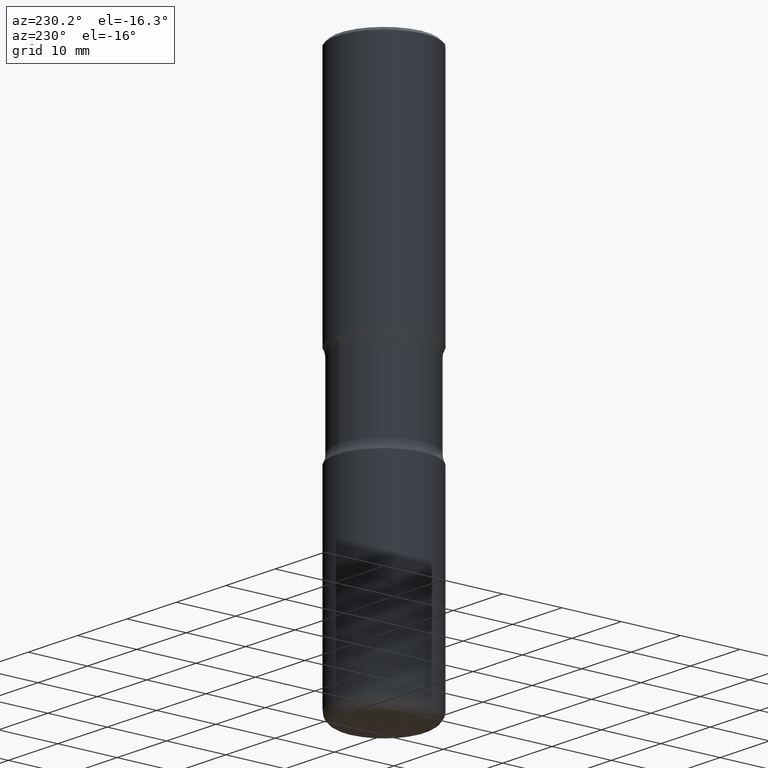
[diagram: clean part render]
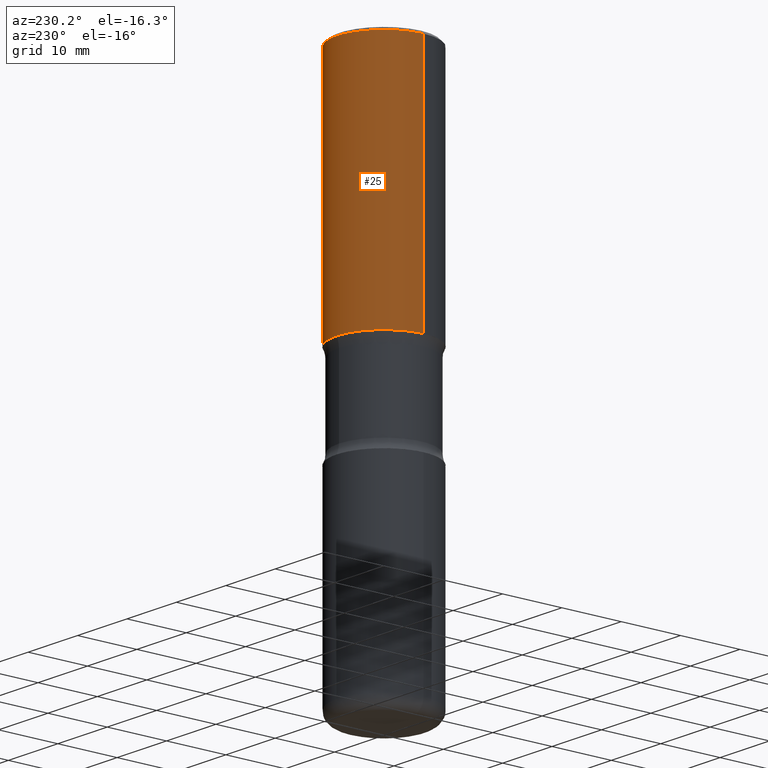
[diagram: same view with one face highlighted and labeled with its STEP entity id]
A machine part, auxiliary view. The second image highlights one B-rep face of the part: STEP entity #25.
In plain terms, the highlighted cylindrical surface (partial cylindrical patch) has radius 7.9997 mm, axis along (-0, 0, 1).
Its self-contained STEP definition (entity closure, byte-faithful):
#14 = CARTESIAN_POINT ( 'NONE',  ( -0.3149500000000000077, 2.129454468560426573E-15, -0.02000000000000006981 ) ) ;
#25 = ADVANCED_FACE ( 'NONE', ( #109 ), #286, .T. ) ;
#50 = CARTESIAN_POINT ( 'NONE',  ( -0.3149500000000000632, 2.237854346276435985E-15, -1.549218606675782956E-29 ) ) ;
#63 = AXIS2_PLACEMENT_3D ( 'NONE', #372, #284, #531 ) ;
#83 = ORIENTED_EDGE ( 'NONE', *, *, #193, .T. ) ;
#109 = FACE_OUTER_BOUND ( 'NONE', #263, .T. ) ;
#144 = CARTESIAN_POINT ( 'NONE',  ( 0.3149500000000001743, -7.835233272497899184E-15, -1.614200000000000745 ) ) ;
#153 = CARTESIAN_POINT ( 'NONE',  ( 0.000000000000000000, 0.000000000000000000, 0.000000000000000000 ) ) ;
#155 = EDGE_CURVE ( 'NONE', #266, #555, #418, .T. ) ;
#159 = DIRECTION ( 'NONE',  ( 1.000000000000000000, -6.982962677686266711E-15, 0.000000000000000000 ) ) ;
#170 = VERTEX_POINT ( 'NONE', #498 ) ;
#185 = DIRECTION ( 'NONE',  ( -2.445468806185136877E-29, 3.491481338843145188E-15, 1.000000000000000000 ) ) ;
#193 = EDGE_CURVE ( 'NONE', #313, #266, #319, .T. ) ;
#227 = CIRCLE ( 'NONE', #461, 0.3149500000000000077 ) ;
#231 = LINE ( 'NONE', #306, #506 ) ;
#237 = CARTESIAN_POINT ( 'NONE',  ( -0.3149500000000001743, -6.150350556922980531E-16, -1.614200000000000745 ) ) ;
#247 = DIRECTION ( 'NONE',  ( 1.000000000000000000, -6.982962677686266711E-15, 4.876176775795936353E-29 ) ) ;
#248 = VECTOR ( 'NONE', #414, 39.37007874015748143 ) ;
#260 = ORIENTED_EDGE ( 'NONE', *, *, #304, .F. ) ;
#262 = AXIS2_PLACEMENT_3D ( 'NONE', #153, #288, #247 ) ;
#263 = EDGE_LOOP ( 'NONE', ( #83, #507, #400, #260 ) ) ;
#266 = VERTEX_POINT ( 'NONE', #237 ) ;
#276 = EDGE_CURVE ( 'NONE', #170, #555, #227, .T. ) ;
#284 = DIRECTION ( 'NONE',  ( -2.445468806185136597E-29, 3.491481338843145583E-15, 1.000000000000000000 ) ) ;
#286 = CYLINDRICAL_SURFACE ( 'NONE', #262, 0.3149500000000000632 ) ;
#288 = DIRECTION ( 'NONE',  ( -2.445468806185136597E-29, 3.491481338843145583E-15, 1.000000000000000000 ) ) ;
#300 = DIRECTION ( 'NONE',  ( -2.445468806185136597E-29, 3.491481338843145583E-15, 1.000000000000000000 ) ) ;
#304 = EDGE_CURVE ( 'NONE', #313, #170, #231, .T. ) ;
#306 = CARTESIAN_POINT ( 'NONE',  ( 0.3149500000000000632, -2.199284095337290265E-15, 1.535751875536930410E-29 ) ) ;
#313 = VERTEX_POINT ( 'NONE', #144 ) ;
#319 = CIRCLE ( 'NONE', #63, 0.3149500000000001743 ) ;
#372 = CARTESIAN_POINT ( 'NONE',  ( 3.947475746944049633E-29, -5.635949177160607736E-15, -1.614200000000000745 ) ) ;
#400 = ORIENTED_EDGE ( 'NONE', *, *, #276, .F. ) ;
#414 = DIRECTION ( 'NONE',  ( -2.445468806185136877E-29, 3.491481338843145188E-15, 1.000000000000000000 ) ) ;
#418 = LINE ( 'NONE', #50, #248 ) ;
#456 = CARTESIAN_POINT ( 'NONE',  ( 4.890937612370289799E-31, -6.982962677686315028E-17, -0.02000000000000006981 ) ) ;
#461 = AXIS2_PLACEMENT_3D ( 'NONE', #456, #300, #159 ) ;
#498 = CARTESIAN_POINT ( 'NONE',  ( 0.3149500000000000077, -2.230543471175007450E-15, -0.02000000000000006981 ) ) ;
#506 = VECTOR ( 'NONE', #185, 39.37007874015748143 ) ;
#507 = ORIENTED_EDGE ( 'NONE', *, *, #155, .T. ) ;
#531 = DIRECTION ( 'NONE',  ( 1.000000000000000000, -6.982962677686265922E-15, 0.000000000000000000 ) ) ;
#555 = VERTEX_POINT ( 'NONE', #14 ) ;